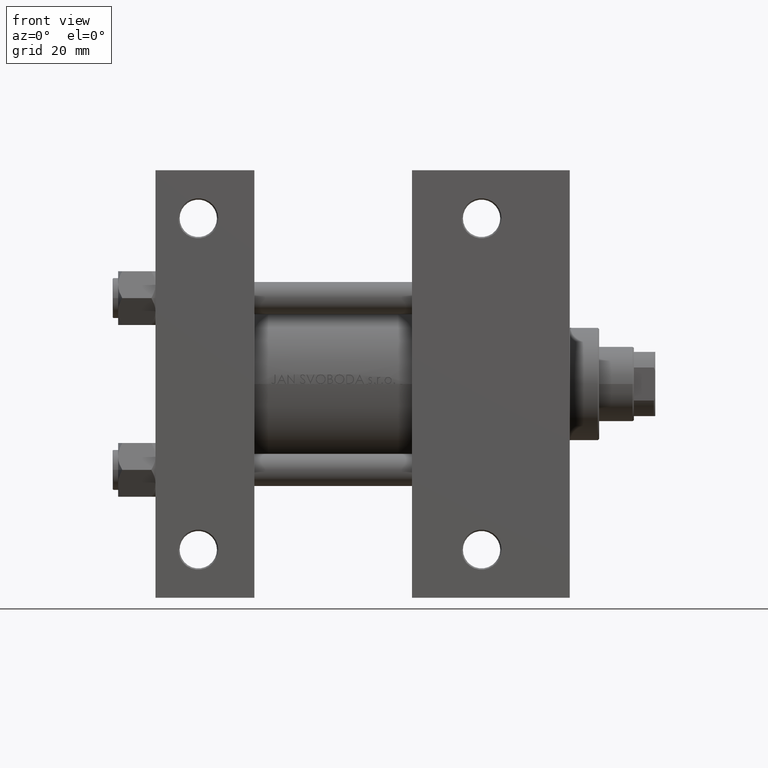
[diagram: clean part render]
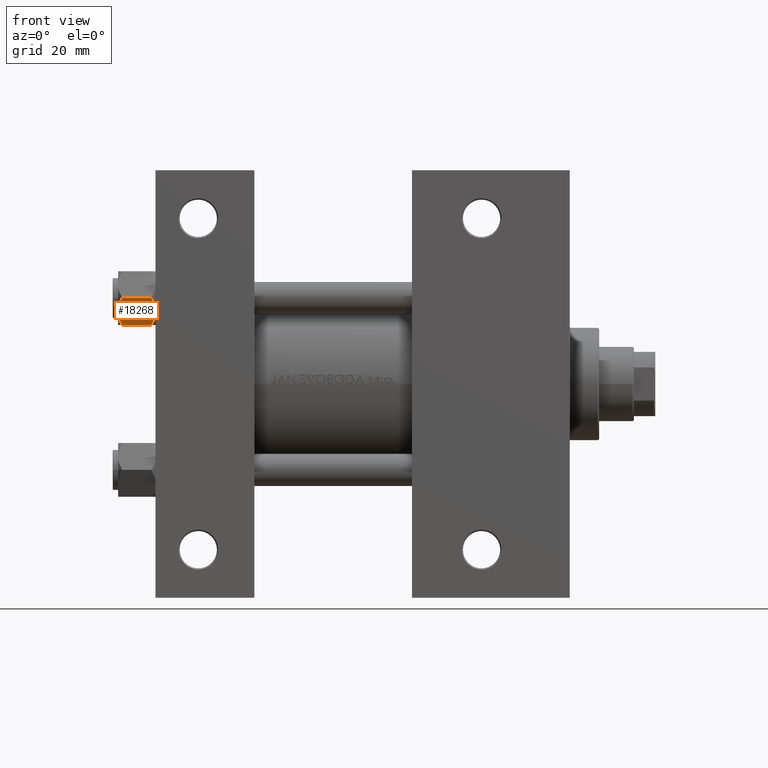
[diagram: same view with one face highlighted and labeled with its STEP entity id]
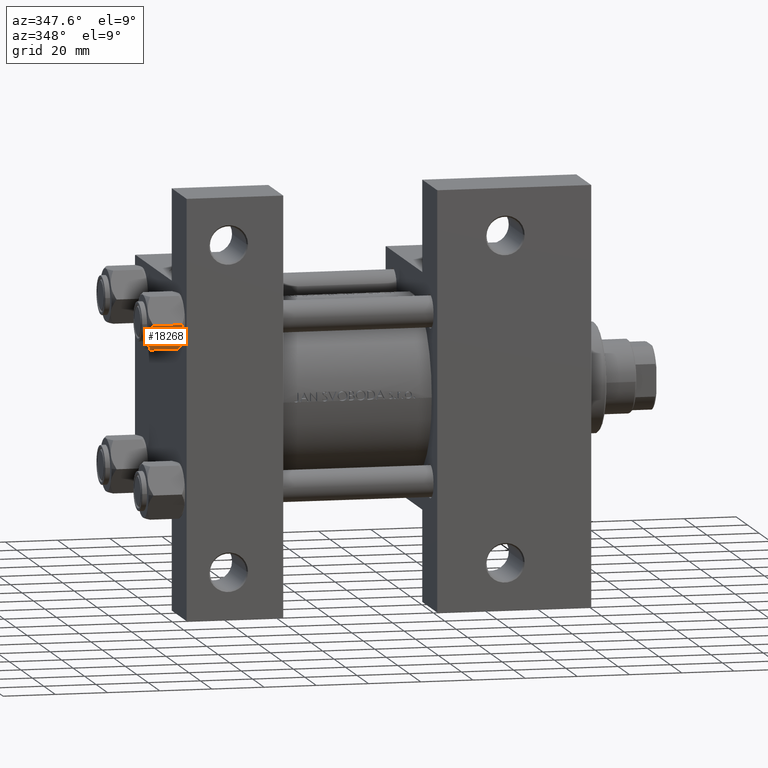
[diagram: same view with one face highlighted and labeled with its STEP entity id]
A machine part, front view. The second image highlights one B-rep face of the part: STEP entity #18268.
A second angle (auxiliary view) of the same face is appended — the face is thin or edge-on in the first view.
In plain terms, the highlighted planar face has unit normal (0, 0.866, 0.5).
Its self-contained STEP definition (entity closure, byte-faithful):
#6 = EDGE_CURVE ( 'NONE', #25864, #21216, #26017, .T. ) ;
#1118 = VERTEX_POINT ( 'NONE', #30135 ) ;
#1148 = CARTESIAN_POINT ( 'NONE',  ( -9.974696630283190757, 2.849749030213795109, -13.69973261901325934 ) ) ;
#2581 = CARTESIAN_POINT ( 'NONE',  ( -11.61999999999999922, 6.270720075510426383E-15, -12.44321519197518811 ) ) ;
#4571 = ORIENTED_EDGE ( 'NONE', *, *, #26486, .F. ) ;
#4610 = ORIENTED_EDGE ( 'NONE', *, *, #30685, .T. ) ;
#4704 = CARTESIAN_POINT ( 'NONE',  ( -11.16498164529022041, 0.7881149087337345760, -1.101766453314951821 ) ) ;
#4952 = CARTESIAN_POINT ( 'NONE',  ( -9.716999946243698005, 3.296092779912228377, -0.1545239700039844066 ) ) ;
#8678 = CARTESIAN_POINT ( 'NONE',  ( -11.16445427487471598, 0.7890283410878030645, -12.89876091710047312 ) ) ;
#9143 = B_SPLINE_CURVE_WITH_KNOTS ( 'NONE', 3,
 ( #38852, #12472, #4952, #28052, #4704, #16250 ),
 .UNSPECIFIED., .F., .F.,
 ( 4, 2, 4 ),
 ( 0.006022845781655589842, 0.009013049135303635023, 0.01200325248895167847 ),
 .UNSPECIFIED. ) ;
#9559 = DIRECTION ( 'NONE',  ( -0.000000000000000000, -0.000000000000000000, 1.000000000000000000 ) ) ;
#9741 = CARTESIAN_POINT ( 'NONE',  ( -6.733375043383492020, 8.463882702393842550, -13.28854452935654962 ) ) ;
#10871 = CARTESIAN_POINT ( 'NONE',  ( -8.715000000000001634, 5.031607595987591885, -14.00000000000000000 ) ) ;
#10889 = VECTOR ( 'NONE', #27674, 1000.000000000000000 ) ;
#11486 = CARTESIAN_POINT ( 'NONE',  ( -11.61999999999999922, 6.288644352490894150E-15, -14.00000000000000000 ) ) ;
#11501 = EDGE_CURVE ( 'NONE', #21216, #43925, #37732, .T. ) ;
#12472 = CARTESIAN_POINT ( 'NONE',  ( -9.220295946303428636, 4.156409344131454020, 2.043043468777371629E-15 ) ) ;
#13797 = AXIS2_PLACEMENT_3D ( 'NONE', #11486, #19264, #30823 ) ;
#16218 = CARTESIAN_POINT ( 'NONE',  ( -8.969430103550378064, 4.590921729663314466, -14.00000000000000178 ) ) ;
#16250 = CARTESIAN_POINT ( 'NONE',  ( -11.61999999999999922, 6.301834029662224111E-15, -1.556784808024812117 ) ) ;
#16618 = B_SPLINE_CURVE_WITH_KNOTS ( 'NONE', 3,
 ( #33509, #17685, #33755, #33013, #29501, #37028, #29997, #25727 ),
 .UNSPECIFIED., .F., .F.,
 ( 4, 2, 2, 4 ),
 ( 2.544312114902182352E-07, 0.003011550106433540791, 0.004517197944044565316, 0.006022845781655589842 ),
 .UNSPECIFIED. ) ;
#17685 = CARTESIAN_POINT ( 'NONE',  ( -6.265545725125282850, 9.274186850887385702, -1.101239082899535537 ) ) ;
#18268 = ADVANCED_FACE ( 'NONE', ( #30578 ), #26574, .F. ) ;
#19264 = DIRECTION ( 'NONE',  ( 0.8660254037844385966, -0.5000000000000002220, 0.000000000000000000 ) ) ;
#21137 = VECTOR ( 'NONE', #9559, 1000.000000000000000 ) ;
#21216 = VERTEX_POINT ( 'NONE', #36624 ) ;
#22432 = CARTESIAN_POINT ( 'NONE',  ( -5.809999999999997833, 10.06321519197518022, -12.44321519197518455 ) ) ;
#23259 = CARTESIAN_POINT ( 'NONE',  ( -11.61999999999999922, 6.301834029662224111E-15, -1.556784808024812117 ) ) ;
#24394 = LINE ( 'NONE', #39695, #10889 ) ;
#24737 = CARTESIAN_POINT ( 'NONE',  ( -9.729165168613649328, 3.275021996682086822, -13.80960203119265906 ) ) ;
#25727 = CARTESIAN_POINT ( 'NONE',  ( -8.715000000000001634, 5.031607595987591885, 0.000000000000000000 ) ) ;
#25830 = ORIENTED_EDGE ( 'NONE', *, *, #37684, .F. ) ;
#25864 = VERTEX_POINT ( 'NONE', #2581 ) ;
#26017 = B_SPLINE_CURVE_WITH_KNOTS ( 'NONE', 3,
 ( #35541, #8678, #46831, #1148, #24737, #28270, #16218, #43560 ),
 .UNSPECIFIED., .F., .F.,
 ( 4, 2, 2, 4 ),
 ( 2.544312114905218436E-07, 0.003011550106433537755, 0.004517197944044560980, 0.006022845781655582903 ),
 .UNSPECIFIED. ) ;
#26203 = CARTESIAN_POINT ( 'NONE',  ( -8.209704053696567527, 5.906805847843725310, -14.00000000000000533 ) ) ;
#26486 = EDGE_CURVE ( 'NONE', #43925, #1118, #43951, .T. ) ;
#26574 = PLANE ( 'NONE',  #13797 ) ;
#26991 = EDGE_CURVE ( 'NONE', #27112, #45995, #9143, .T. ) ;
#27112 = VERTEX_POINT ( 'NONE', #49362 ) ;
#27674 = DIRECTION ( 'NONE',  ( -0.000000000000000000, -0.000000000000000000, 1.000000000000000000 ) ) ;
#28052 = CARTESIAN_POINT ( 'NONE',  ( -10.69662495661650325, 1.599332489581336780, -0.7114554706434498277 ) ) ;
#28094 = CARTESIAN_POINT ( 'NONE',  ( -6.265018354709776638, 9.275100283241455301, -12.89823354668505218 ) ) ;
#28270 = CARTESIAN_POINT ( 'NONE',  ( -9.227666995912096937, 4.143642311704127223, -13.96005881939308857 ) ) ;
#29259 = ORIENTED_EDGE ( 'NONE', *, *, #11501, .F. ) ;
#29450 = ORIENTED_EDGE ( 'NONE', *, *, #6, .F. ) ;
#29501 = CARTESIAN_POINT ( 'NONE',  ( -7.700834831386344170, 6.788193195293096949, -0.1903979688073418330 ) ) ;
#29997 = CARTESIAN_POINT ( 'NONE',  ( -8.460569896449618099, 5.472293462311865753, 2.204732646931026331E-15 ) ) ;
#30135 = CARTESIAN_POINT ( 'NONE',  ( -5.809999999999997833, 10.06321519197518022, -1.556784808024815447 ) ) ;
#30578 = FACE_OUTER_BOUND ( 'NONE', #40588, .T. ) ;
#30685 = EDGE_CURVE ( 'NONE', #25864, #45995, #24394, .T. ) ;
#30823 = DIRECTION ( 'NONE',  ( 0.5000000000000001110, 0.8660254037844384856, 0.000000000000000000 ) ) ;
#31432 = CARTESIAN_POINT ( 'NONE',  ( -5.809999999999997833, 10.06321519197518022, -14.00000000000000000 ) ) ;
#33013 = CARTESIAN_POINT ( 'NONE',  ( -7.455303369716805406, 7.213466161761384221, -0.3002673809867381083 ) ) ;
#33509 = CARTESIAN_POINT ( 'NONE',  ( -5.809999999999997833, 10.06321519197518022, -1.556784808024815447 ) ) ;
#33755 = CARTESIAN_POINT ( 'NONE',  ( -6.731401448974986934, 8.467301068182916168, -0.7141438259524663934 ) ) ;
#35541 = CARTESIAN_POINT ( 'NONE',  ( -11.61999999999999922, 6.270720075510426383E-15, -12.44321519197518811 ) ) ;
#35825 = ORIENTED_EDGE ( 'NONE', *, *, #26991, .F. ) ;
#36624 = CARTESIAN_POINT ( 'NONE',  ( -8.715000000000001634, 5.031607595987591885, -14.00000000000000000 ) ) ;
#37028 = CARTESIAN_POINT ( 'NONE',  ( -8.202333004087897450, 5.919572880271055659, -0.03994118060690795419 ) ) ;
#37684 = EDGE_CURVE ( 'NONE', #1118, #27112, #16618, .T. ) ;
#37732 = B_SPLINE_CURVE_WITH_KNOTS ( 'NONE', 3,
 ( #10871, #26203, #41501, #9741, #28094, #43882 ),
 .UNSPECIFIED., .F., .F.,
 ( 4, 2, 4 ),
 ( 0.006022845781655582903, 0.009013049135303629819, 0.01200325248895167847 ),
 .UNSPECIFIED. ) ;
#38852 = CARTESIAN_POINT ( 'NONE',  ( -8.715000000000001634, 5.031607595987591885, 0.000000000000000000 ) ) ;
#39695 = CARTESIAN_POINT ( 'NONE',  ( -11.61999999999999922, 6.288644352490894150E-15, -14.00000000000000000 ) ) ;
#40588 = EDGE_LOOP ( 'NONE', ( #29450, #4610, #35825, #25830, #4571, #29259 ) ) ;
#41501 = CARTESIAN_POINT ( 'NONE',  ( -7.713000053756302599, 6.767122412062954062, -13.84547602999601601 ) ) ;
#43560 = CARTESIAN_POINT ( 'NONE',  ( -8.715000000000001634, 5.031607595987591885, -14.00000000000000000 ) ) ;
#43882 = CARTESIAN_POINT ( 'NONE',  ( -5.809999999999997833, 10.06321519197518022, -12.44321519197518455 ) ) ;
#43925 = VERTEX_POINT ( 'NONE', #22432 ) ;
#43951 = LINE ( 'NONE', #31432, #21137 ) ;
#45995 = VERTEX_POINT ( 'NONE', #23259 ) ;
#46831 = CARTESIAN_POINT ( 'NONE',  ( -10.69859855102501101, 1.595914123792268491, -13.28585617404753627 ) ) ;
#49362 = CARTESIAN_POINT ( 'NONE',  ( -8.715000000000001634, 5.031607595987591885, 0.000000000000000000 ) ) ;